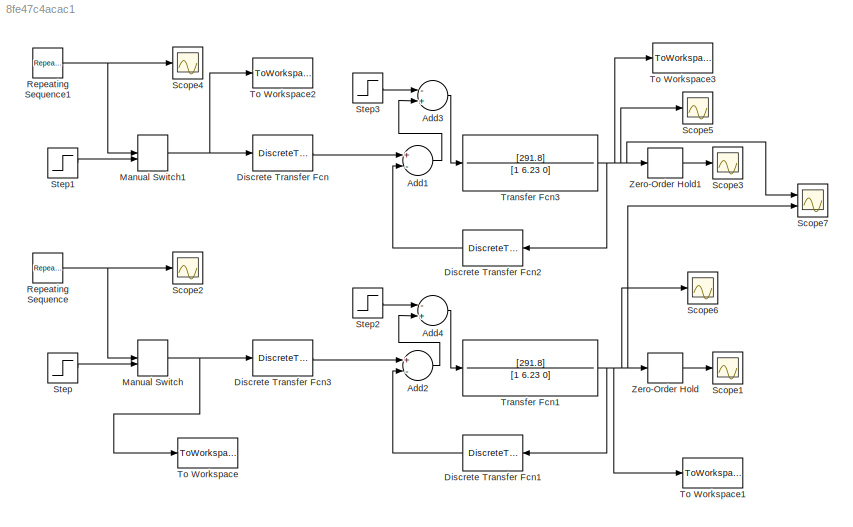
MODEL slx_8fe47c4acac1
KIND model
CONFIG AbsTol = auto
CONFIG FixedStep = auto
CONFIG MaxStep = auto
CONFIG MinStep = auto
CONFIG RelTol = 1e-5
CONFIG SampleTimeConstraint = Unconstrained
CONFIG Solver = ode45
CONFIG SolverMode = Auto
CONFIG SolverName = ode45
CONFIG StartTime = 0.0
CONFIG StopTime = 30
BLOCK [Sum] Add1
  InputSameDT = off
  Inputs = +-
  OutDataTypeStr = Inherit: Inherit via internal rule
  Ports = [2, 1]
  SaturateOnIntegerOverflow = off
BLOCK [Sum] Add2
  InputSameDT = off
  Inputs = +-
  OutDataTypeStr = Inherit: Inherit via internal rule
  Ports = [2, 1]
  SaturateOnIntegerOverflow = off
BLOCK [Sum] Add3
  InputSameDT = off
  Inputs = -+
  OutDataTypeStr = Inherit: Inherit via internal rule
  Ports = [2, 1]
  SaturateOnIntegerOverflow = off
BLOCK [Sum] Add4
  InputSameDT = off
  Inputs = -+
  OutDataTypeStr = Inherit: Inherit via internal rule
  Ports = [2, 1]
  SaturateOnIntegerOverflow = off
BLOCK [DiscreteTransferFcn] Discrete Transfer Fcn
  Denominator = [R_cu]
  InputPortMap = u0
  Numerator = [T_cu]
  Ports = [1, 1]
  SampleTime = Te
BLOCK [DiscreteTransferFcn] Discrete Transfer Fcn1
  Denominator = [R_fara]
  InputPortMap = u0
  Numerator = [S_fara]
  Ports = [1, 1]
  SampleTime = Te
BLOCK [DiscreteTransferFcn] Discrete Transfer Fcn2
  Denominator = [R_cu]
  InputPortMap = u0
  Numerator = [S_cu]
  Ports = [1, 1]
  SampleTime = Te
BLOCK [DiscreteTransferFcn] Discrete Transfer Fcn3
  Denominator = [R_fara]
  InputPortMap = u0
  Numerator = [T_fara]
  Ports = [1, 1]
  SampleTime = Te
BLOCK [ManualSwitch] Manual Switch
BLOCK [ManualSwitch] Manual Switch1
BLOCK [Reference] Repeating Sequence  REF=simulink/Sources/Repeating
Sequence
  Ports = [0, 1]
  SourceBlock = simulink/Sources/Repeating\nSequence
  SourceType = Repeating table
BLOCK [Reference] Repeating Sequence1  REF=simulink/Sources/Repeating
Sequence
  Ports = [0, 1]
  SourceBlock = simulink/Sources/Repeating\nSequence
  SourceType = Repeating table
BLOCK [Scope] Scope1
  Ports = [1]
  ScopeSpecificationString = Simulink.scopes.TimeScopeBlockCfg('CurrentConfiguration', extmgr.ConfigurationSet(extmgr.Configuration('Core','General UI',true),extmgr.Configuration('Core','Source UI',true),extmgr.Configuration('Sources','WiredSimulink',true),extmgr.Configuration('Visuals','Time Domain',true,'SerializedDisplays',{struct('MinYLimReal','-0.91232','MaxYLimReal','5.91242','YLabelReal','','MinYLimMag','0.00000','MaxY...<+1335ch>
BLOCK [Scope] Scope2
  Ports = [1]
  ScopeSpecificationString = Simulink.scopes.TimeScopeBlockCfg('CurrentConfiguration', extmgr.ConfigurationSet(extmgr.Configuration('Core','General UI',true),extmgr.Configuration('Core','Source UI',true),extmgr.Configuration('Sources','WiredSimulink',true,'DataLoggingVariableName','ScopeData2'),extmgr.Configuration('Visuals','Time Domain',true,'SerializedDisplays',{struct('MinYLimReal','-0.625','MaxYLimReal','5.625','YLabelRe...<+1365ch>
BLOCK [Scope] Scope3
  Ports = [1]
  ScopeSpecificationString = Simulink.scopes.TimeScopeBlockCfg('CurrentConfiguration', extmgr.ConfigurationSet(extmgr.Configuration('Core','General UI',true),extmgr.Configuration('Core','Source UI',true),extmgr.Configuration('Sources','WiredSimulink',true,'DataLoggingVariableName','ScopeData1'),extmgr.Configuration('Visuals','Time Domain',true,'SerializedDisplays',{struct('MinYLimReal','-0.91239','MaxYLimReal','5.91249','YLab...<+1375ch>
BLOCK [Scope] Scope4
  Ports = [1]
  ScopeSpecificationString = Simulink.scopes.TimeScopeBlockCfg('CurrentConfiguration', extmgr.ConfigurationSet(extmgr.Configuration('Core','General UI',true),extmgr.Configuration('Core','Source UI',true),extmgr.Configuration('Sources','WiredSimulink',true,'DataLoggingVariableName','ScopeData3'),extmgr.Configuration('Visuals','Time Domain',true,'SerializedDisplays',{struct('MinYLimReal','-0.625','MaxYLimReal','5.625','YLabelRe...<+1365ch>
BLOCK [Scope] Scope5
  Ports = [1]
  ScopeSpecificationString = Simulink.scopes.TimeScopeBlockCfg('CurrentConfiguration', extmgr.ConfigurationSet(extmgr.Configuration('Core','General UI',true),extmgr.Configuration('Core','Source UI',true),extmgr.Configuration('Sources','WiredSimulink',true,'DataLoggingVariableName','ScopeData4'),extmgr.Configuration('Visuals','Time Domain',true,'SerializedDisplays',{struct('MinYLimReal','-0.94734','MaxYLimReal','5.94745','YLab...<+1402ch>
BLOCK [Scope] Scope6
  Ports = [1]
  ScopeSpecificationString = Simulink.scopes.TimeScopeBlockCfg('CurrentConfiguration', extmgr.ConfigurationSet(extmgr.Configuration('Core','General UI',true),extmgr.Configuration('Core','Source UI',true),extmgr.Configuration('Sources','WiredSimulink',true,'DataLoggingVariableName','ScopeData5'),extmgr.Configuration('Visuals','Time Domain',true,'SerializedDisplays',{struct('MinYLimReal','-0.88683','MaxYLimReal','5.88694','YLab...<+1404ch>
BLOCK [Scope] Scope7
  NumInputPorts = 2
  Ports = [2]
  ScopeSpecificationString = Simulink.scopes.TimeScopeBlockCfg('CurrentConfiguration', extmgr.ConfigurationSet(extmgr.Configuration('Core','General UI',true),extmgr.Configuration('Core','Source UI',true),extmgr.Configuration('Sources','WiredSimulink',true,'DataLoggingVariableName','ScopeData1'),extmgr.Configuration('Visuals','Time Domain',true,'SerializedDisplays',{struct('MinYLimReal','-0.94734','MaxYLimReal','5.94745','YLab...<+1421ch>
BLOCK [Step] Step
  SampleTime = 0
  Time = 0
BLOCK [Step] Step1
  SampleTime = 0
  Time = 0
BLOCK [Step] Step2
  After = 0.01
  SampleTime = 0
  Time = 7.5
BLOCK [Step] Step3
  After = 0.01
  SampleTime = 0
  Time = 7.5
BLOCK [ToWorkspace] To Workspace
  FixptAsFi = on
  MaxDataPoints = inf
  Ports = [1]
  SampleTime = -1
  Save2DSignal = 3-D array (concatenate along third dimension)
  SaveFormat = Timeseries
  VariableName = w
BLOCK [ToWorkspace] To Workspace1
  FixptAsFi = on
  MaxDataPoints = inf
  Ports = [1]
  SampleTime = -1
  Save2DSignal = 3-D array (concatenate along third dimension)
  SaveFormat = Timeseries
  VariableName = y
BLOCK [ToWorkspace] To Workspace2
  FixptAsFi = on
  MaxDataPoints = inf
  Ports = [1]
  SampleTime = -1
  Save2DSignal = 3-D array (concatenate along third dimension)
  SaveFormat = Timeseries
  VariableName = w1
BLOCK [ToWorkspace] To Workspace3
  FixptAsFi = on
  MaxDataPoints = inf
  Ports = [1]
  SampleTime = -1
  Save2DSignal = 3-D array (concatenate along third dimension)
  SaveFormat = Timeseries
  VariableName = y1
BLOCK [TransferFcn] Transfer Fcn1
  Denominator = [1 6.23 0]
  Numerator = [291.8]
BLOCK [TransferFcn] Transfer Fcn3
  Denominator = [1 6.23 0]
  Numerator = [291.8]
BLOCK [ZeroOrderHold] Zero-Order Hold
  SampleTime = Te
BLOCK [ZeroOrderHold] Zero-Order Hold1
  SampleTime = Te
LINE Add1:1 -> Add3:2
LINE Add2:1 -> Add4:2
LINE Add3:1 -> Transfer Fcn3:1
LINE Add4:1 -> Transfer Fcn1:1
LINE Discrete Transfer Fcn1:1 -> Add2:2
LINE Discrete Transfer Fcn2:1 -> Add1:2
LINE Discrete Transfer Fcn3:1 -> Add2:1
LINE Discrete Transfer Fcn:1 -> Add1:1
NET Manual Switch1:1 -> Discrete Transfer Fcn:1, To Workspace2:1
NET Manual Switch:1 -> Discrete Transfer Fcn3:1, To Workspace:1
NET Repeating Sequence1:1 -> Manual Switch1:1, Scope4:1
NET Repeating Sequence:1 -> Manual Switch:1, Scope2:1
LINE Step1:1 -> Manual Switch1:2
LINE Step2:1 -> Add4:1
LINE Step3:1 -> Add3:1
LINE Step:1 -> Manual Switch:2
NET Transfer Fcn1:1 -> Discrete Transfer Fcn1:1, Scope6:1, Scope7:2, To Workspace1:1, Zero-Order Hold:1
NET Transfer Fcn3:1 -> Discrete Transfer Fcn2:1, Scope5:1, Scope7:1, To Workspace3:1, Zero-Order Hold1:1
LINE Zero-Order Hold1:1 -> Scope3:1
LINE Zero-Order Hold:1 -> Scope1:1
note: NET lines group one-source signal fan-out (src -> all destinations, sorted); 1:1 wires keep LINE
